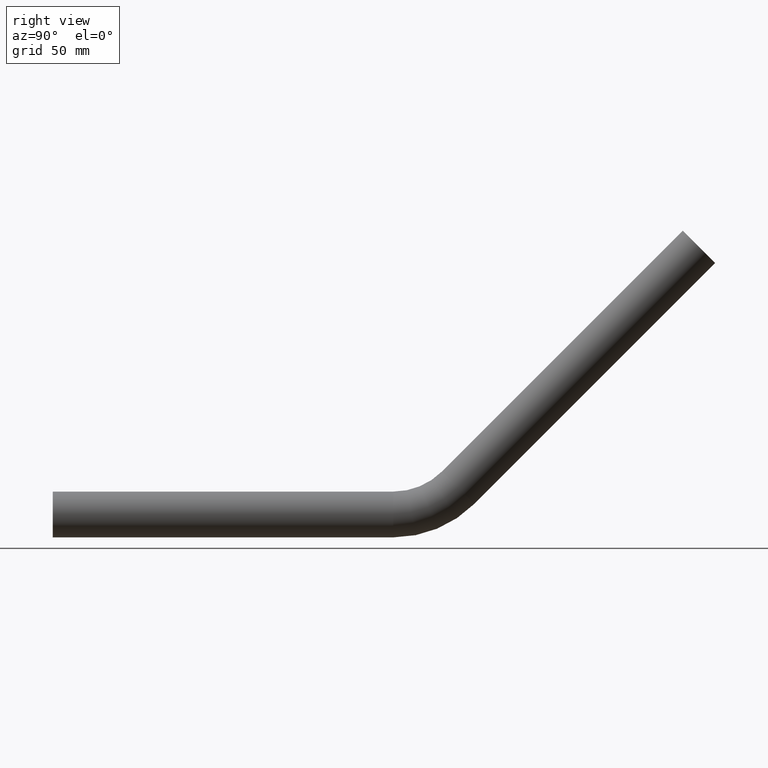
[diagram: clean part render]
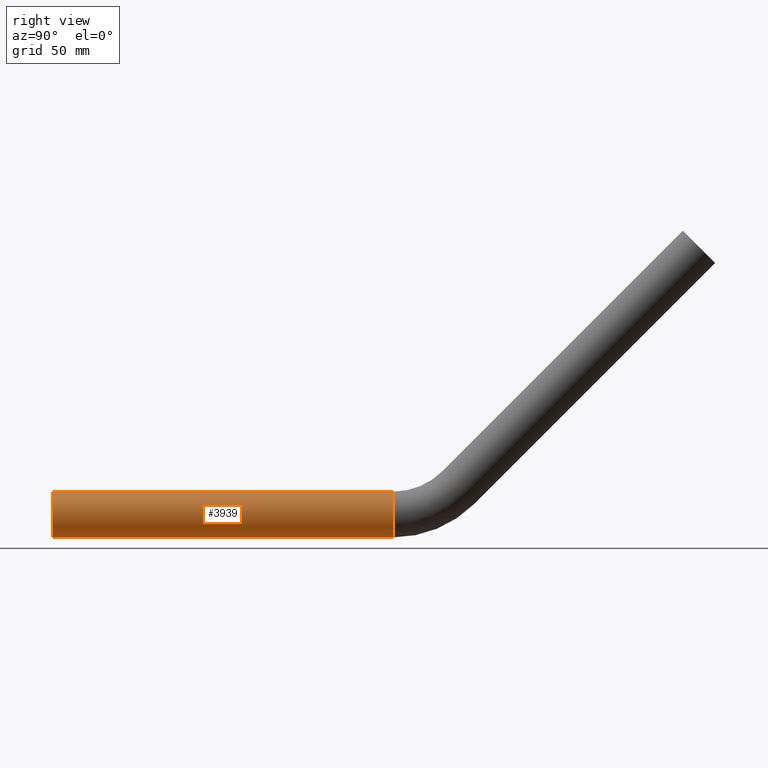
[diagram: same view with one face highlighted and labeled with its STEP entity id]
A machine part, right view. The second image highlights one B-rep face of the part: STEP entity #3939.
In plain terms, the highlighted cylindrical surface (edge-blend (fillet) strip) has radius 13.45 mm, axis along (-0, -1, -0).
Its self-contained STEP definition (entity closure, byte-faithful):
#373 = ORIENTED_EDGE ( 'NONE', *, *, #6015, .F. ) ;
#690 = CARTESIAN_POINT ( 'NONE',  ( 0.0000000000000000000, 200.0000000000000000, 0.0000000000000000000 ) ) ;
#1300 = CARTESIAN_POINT ( 'NONE',  ( 1.647149944853190000E-015, 200.0000000000000000, 13.44999999999999900 ) ) ;
#1399 = DIRECTION ( 'NONE',  ( 0.0000000000000000000, 0.0000000000000000000, 1.000000000000000000 ) ) ;
#1566 = DIRECTION ( 'NONE',  ( 0.0000000000000000000, 1.000000000000000000, 0.0000000000000000000 ) ) ;
#1868 = CIRCLE ( 'NONE', #7665, 13.44999999999999900 ) ;
#1892 = AXIS2_PLACEMENT_3D ( 'NONE', #6481, #8093, #9803 ) ;
#2671 = VECTOR ( 'NONE', #5519, 1000.000000000000000 ) ;
#2978 = CARTESIAN_POINT ( 'NONE',  ( 1.647149944853190000E-015, 200.0000000000000000, 13.44999999999999900 ) ) ;
#3554 = VECTOR ( 'NONE', #5472, 1000.000000000000000 ) ;
#3814 = CARTESIAN_POINT ( 'NONE',  ( 0.0000000000000000000, 0.0000000000000000000, -13.44999999999999900 ) ) ;
#3846 = CARTESIAN_POINT ( 'NONE',  ( 0.0000000000000000000, 200.0000000000000000, -13.44999999999999900 ) ) ;
#3866 = CARTESIAN_POINT ( 'NONE',  ( 0.0000000000000000000, 200.0000000000000000, -13.44999999999999900 ) ) ;
#3939 = ADVANCED_FACE ( 'NONE', ( #8239 ), #4816, .T. ) ;
#4075 = DIRECTION ( 'NONE',  ( 0.0000000000000000000, 1.000000000000000000, 0.0000000000000000000 ) ) ;
#4816 = CYLINDRICAL_SURFACE ( 'NONE', #1892, 13.44999999999999900 ) ;
#5044 = CIRCLE ( 'NONE', #6241, 13.44999999999999900 ) ;
#5216 = VERTEX_POINT ( 'NONE', #8089 ) ;
#5436 = LINE ( 'NONE', #3866, #2671 ) ;
#5468 = ORIENTED_EDGE ( 'NONE', *, *, #7424, .T. ) ;
#5472 = DIRECTION ( 'NONE',  ( -0.0000000000000000000, -1.000000000000000000, -0.0000000000000000000 ) ) ;
#5519 = DIRECTION ( 'NONE',  ( -0.0000000000000000000, -1.000000000000000000, -0.0000000000000000000 ) ) ;
#5997 = ORIENTED_EDGE ( 'NONE', *, *, #6509, .F. ) ;
#6015 = EDGE_CURVE ( 'NONE', #10378, #6997, #5436, .T. ) ;
#6241 = AXIS2_PLACEMENT_3D ( 'NONE', #690, #4075, #1399 ) ;
#6481 = CARTESIAN_POINT ( 'NONE',  ( 0.0000000000000000000, 200.0000000000000000, 0.0000000000000000000 ) ) ;
#6509 = EDGE_CURVE ( 'NONE', #9819, #10378, #5044, .T. ) ;
#6997 = VERTEX_POINT ( 'NONE', #3814 ) ;
#7423 = DIRECTION ( 'NONE',  ( 0.0000000000000000000, 0.0000000000000000000, 1.000000000000000000 ) ) ;
#7424 = EDGE_CURVE ( 'NONE', #5216, #6997, #1868, .T. ) ;
#7665 = AXIS2_PLACEMENT_3D ( 'NONE', #10742, #1566, #7423 ) ;
#8089 = CARTESIAN_POINT ( 'NONE',  ( 1.647149944853190000E-015, 0.0000000000000000000, 13.44999999999999900 ) ) ;
#8093 = DIRECTION ( 'NONE',  ( -0.0000000000000000000, -1.000000000000000000, -0.0000000000000000000 ) ) ;
#8239 = FACE_OUTER_BOUND ( 'NONE', #10049, .T. ) ;
#8851 = LINE ( 'NONE', #1300, #3554 ) ;
#9106 = ORIENTED_EDGE ( 'NONE', *, *, #10916, .T. ) ;
#9803 = DIRECTION ( 'NONE',  ( 0.0000000000000000000, 0.0000000000000000000, -1.000000000000000000 ) ) ;
#9819 = VERTEX_POINT ( 'NONE', #2978 ) ;
#10049 = EDGE_LOOP ( 'NONE', ( #5997, #9106, #5468, #373 ) ) ;
#10378 = VERTEX_POINT ( 'NONE', #3846 ) ;
#10742 = CARTESIAN_POINT ( 'NONE',  ( 0.0000000000000000000, 0.0000000000000000000, 0.0000000000000000000 ) ) ;
#10916 = EDGE_CURVE ( 'NONE', #9819, #5216, #8851, .T. ) ;